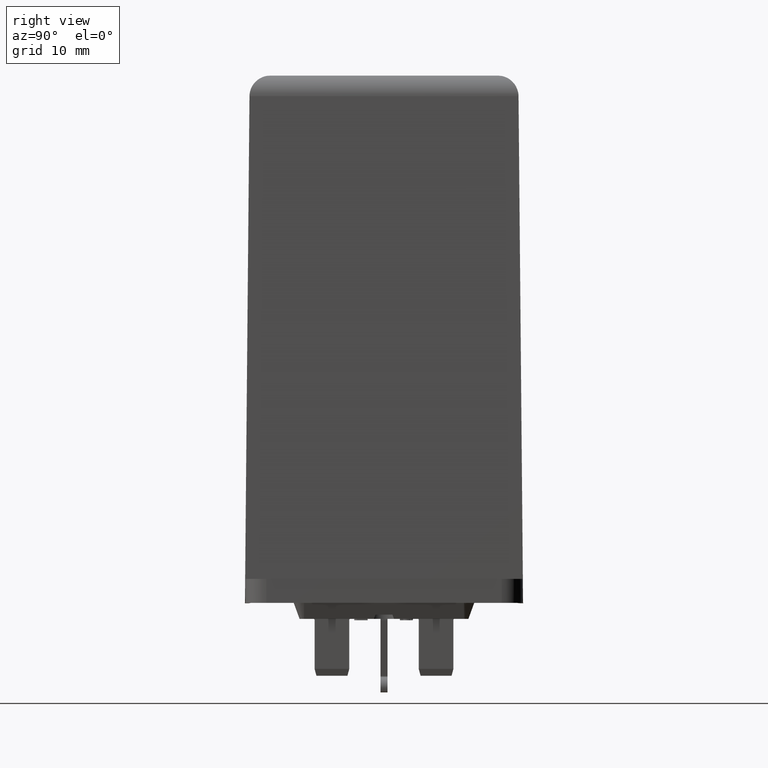
[diagram: clean part render]
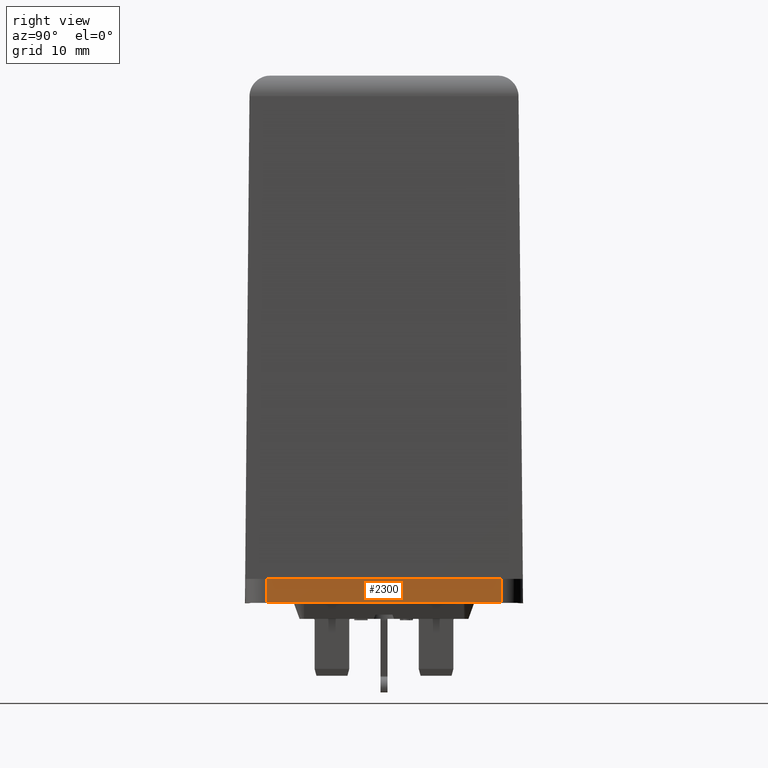
[diagram: same view with one face highlighted and labeled with its STEP entity id]
A machine part, right view. The second image highlights one B-rep face of the part: STEP entity #2300.
In plain terms, the highlighted planar face has unit normal (1, 0, 0).
Its self-contained STEP definition (entity closure, byte-faithful):
#1046=CARTESIAN_POINT('',(19.950002521962418,16.950000142021239,-4.261275113935888));
#1047=VERTEX_POINT('',#1046);
#1145=CARTESIAN_POINT('',(19.950002521962872,-16.949999857979307,-4.261275113949266));
#1146=VERTEX_POINT('',#1145);
#1154=CARTESIAN_POINT('',(19.950002521962418,16.950000142021239,-4.261275113935887));
#1155=DIRECTION('',(3.248794E-015,-1.0,-3.946499E-013));
#1156=VECTOR('',#1155,33.900000000000546);
#1157=LINE('',#1154,#1156);
#1158=EDGE_CURVE('',#1047,#1146,#1157,.T.);
#2270=CARTESIAN_POINT('',(19.950002521962414,16.950000142021239,-7.711275113936984));
#2271=DIRECTION('',(1.0,0.0,0.0));
#2272=DIRECTION('',(0.0,0.0,-1.0));
#2273=AXIS2_PLACEMENT_3D('',#2270,#2271,#2272);
#2274=PLANE('',#2273);
#2275=ORIENTED_EDGE('',*,*,#1158,.T.);
#2276=CARTESIAN_POINT('',(19.950002521962872,-16.949999857979311,-7.711275113936971));
#2277=VERTEX_POINT('',#2276);
#2278=CARTESIAN_POINT('',(19.950002521962872,-16.949999857979311,-7.711275113936971));
#2279=DIRECTION('',(0.0,0.0,1.0));
#2280=VECTOR('',#2279,3.449999999987705);
#2281=LINE('',#2278,#2280);
#2282=EDGE_CURVE('',#2277,#1146,#2281,.T.);
#2283=ORIENTED_EDGE('',*,*,#2282,.F.);
#2284=CARTESIAN_POINT('',(19.950002521962414,16.950000142021239,-7.711275113936984));
#2285=VERTEX_POINT('',#2284);
#2286=CARTESIAN_POINT('',(19.950002521962872,-16.949999857979311,-7.711275113936971));
#2287=DIRECTION('',(0.0,1.0,0.0));
#2288=VECTOR('',#2287,33.900000000000546);
#2289=LINE('',#2286,#2288);
#2290=EDGE_CURVE('',#2277,#2285,#2289,.T.);
#2291=ORIENTED_EDGE('',*,*,#2290,.T.);
#2292=CARTESIAN_POINT('',(19.950002521962414,16.950000142021239,-7.711275113936984));
#2293=DIRECTION('',(0.0,0.0,1.0));
#2294=VECTOR('',#2293,3.450000000001096);
#2295=LINE('',#2292,#2294);
#2296=EDGE_CURVE('',#2285,#1047,#2295,.T.);
#2297=ORIENTED_EDGE('',*,*,#2296,.T.);
#2298=EDGE_LOOP('',(#2275,#2283,#2291,#2297));
#2299=FACE_OUTER_BOUND('',#2298,.T.);
#2300=ADVANCED_FACE('',(#2299),#2274,.T.);